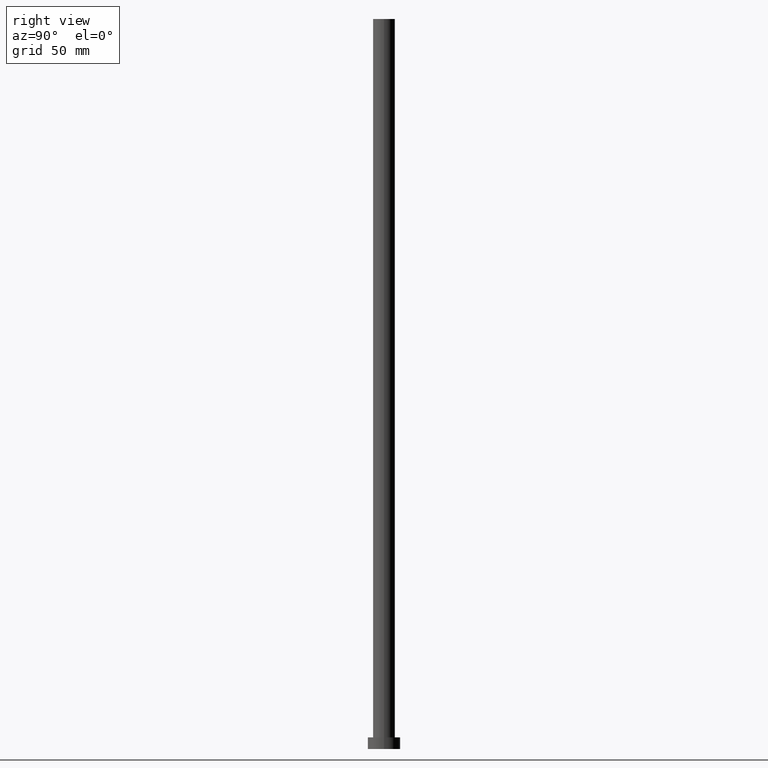
[diagram: clean part render]
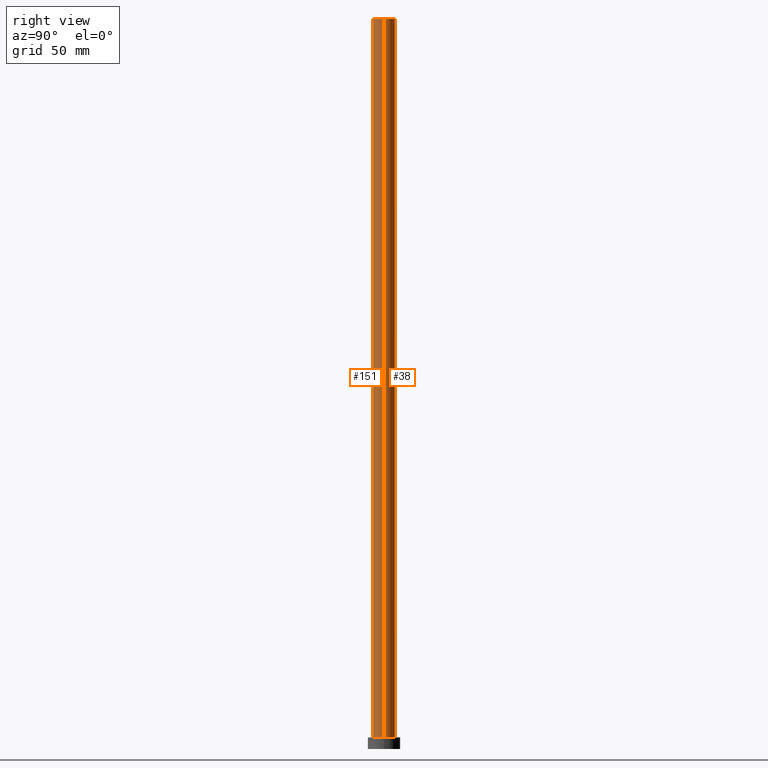
[diagram: same view with one multi-face feature highlighted, each face labeled with its STEP entity id]
A machine part, right view. The highlighted faces form ONE feature: a constant-radius fillet chain: 2 tangent blend faces with common blend radius 4.75 mm. The faces share edges in the B-rep.
Their STEP definitions:
[1] entity #151 (Cylinder):
#7 = DIRECTION ( 'NONE',  ( -0.000000000000000000, -0.000000000000000000, -1.000000000000000000 ) ) ;
#8 = CARTESIAN_POINT ( 'NONE',  ( 0.000000000000000000, 0.000000000000000000, 315.0000000000000000 ) ) ;
#9 = CARTESIAN_POINT ( 'NONE',  ( 4.750000000000000888, 5.817072295949928412E-16, 315.0000000000000000 ) ) ;
#15 = ORIENTED_EDGE ( 'NONE', *, *, #148, .T. ) ;
#17 = EDGE_CURVE ( 'NONE', #41, #115, #228, .T. ) ;
#24 = DIRECTION ( 'NONE',  ( 1.000000000000000000, 0.000000000000000000, 0.000000000000000000 ) ) ;
#29 = CYLINDRICAL_SURFACE ( 'NONE', #196, 4.750000000000000888 ) ;
#41 = VERTEX_POINT ( 'NONE', #254 ) ;
#46 = DIRECTION ( 'NONE',  ( -0.000000000000000000, -0.000000000000000000, -1.000000000000000000 ) ) ;
#58 = DIRECTION ( 'NONE',  ( 0.000000000000000000, 0.000000000000000000, 1.000000000000000000 ) ) ;
#66 = CARTESIAN_POINT ( 'NONE',  ( -4.750000000000000888, 0.000000000000000000, 315.0000000000000000 ) ) ;
#75 = EDGE_LOOP ( 'NONE', ( #82, #213, #15, #186 ) ) ;
#82 = ORIENTED_EDGE ( 'NONE', *, *, #250, .F. ) ;
#90 = DIRECTION ( 'NONE',  ( -1.000000000000000000, 0.000000000000000000, 0.000000000000000000 ) ) ;
#102 = EDGE_CURVE ( 'NONE', #203, #104, #235, .T. ) ;
#104 = VERTEX_POINT ( 'NONE', #175 ) ;
#111 = VECTOR ( 'NONE', #7, 1000.000000000000000 ) ;
#112 = DIRECTION ( 'NONE',  ( 0.000000000000000000, 0.000000000000000000, 1.000000000000000000 ) ) ;
#115 = VERTEX_POINT ( 'NONE', #238 ) ;
#136 = CARTESIAN_POINT ( 'NONE',  ( 0.000000000000000000, 0.000000000000000000, 315.0000000000000000 ) ) ;
#148 = EDGE_CURVE ( 'NONE', #203, #41, #191, .T. ) ;
#151 = ADVANCED_FACE ( 'NONE', ( #240 ), #29, .T. ) ;
#155 = DIRECTION ( 'NONE',  ( -0.000000000000000000, -0.000000000000000000, -1.000000000000000000 ) ) ;
#156 = CARTESIAN_POINT ( 'NONE',  ( -4.750000000000000888, 0.000000000000000000, 315.0000000000000000 ) ) ;
#175 = CARTESIAN_POINT ( 'NONE',  ( 4.750000000000000888, 5.817072295949928412E-16, 315.0000000000000000 ) ) ;
#186 = ORIENTED_EDGE ( 'NONE', *, *, #17, .T. ) ;
#191 = LINE ( 'NONE', #66, #241 ) ;
#196 = AXIS2_PLACEMENT_3D ( 'NONE', #8, #155, #90 ) ;
#203 = VERTEX_POINT ( 'NONE', #156 ) ;
#207 = AXIS2_PLACEMENT_3D ( 'NONE', #136, #112, #239 ) ;
#213 = ORIENTED_EDGE ( 'NONE', *, *, #102, .F. ) ;
#228 = CIRCLE ( 'NONE', #249, 4.750000000000000888 ) ;
#232 = CARTESIAN_POINT ( 'NONE',  ( 0.000000000000000000, 0.000000000000000000, 5.000000000000000000 ) ) ;
#235 = CIRCLE ( 'NONE', #207, 4.750000000000000888 ) ;
#238 = CARTESIAN_POINT ( 'NONE',  ( 4.750000000000000888, 5.817072295949928412E-16, 5.000000000000000000 ) ) ;
#239 = DIRECTION ( 'NONE',  ( 1.000000000000000000, 0.000000000000000000, 0.000000000000000000 ) ) ;
#240 = FACE_OUTER_BOUND ( 'NONE', #75, .T. ) ;
#241 = VECTOR ( 'NONE', #46, 1000.000000000000000 ) ;
#244 = LINE ( 'NONE', #9, #111 ) ;
#249 = AXIS2_PLACEMENT_3D ( 'NONE', #232, #58, #24 ) ;
#250 = EDGE_CURVE ( 'NONE', #104, #115, #244, .T. ) ;
#254 = CARTESIAN_POINT ( 'NONE',  ( -4.750000000000000888, 0.000000000000000000, 5.000000000000000000 ) ) ;
[2] entity #38 (Cylinder):
#7 = DIRECTION ( 'NONE',  ( -0.000000000000000000, -0.000000000000000000, -1.000000000000000000 ) ) ;
#9 = CARTESIAN_POINT ( 'NONE',  ( 4.750000000000000888, 5.817072295949928412E-16, 315.0000000000000000 ) ) ;
#19 = DIRECTION ( 'NONE',  ( 1.000000000000000000, 0.000000000000000000, 0.000000000000000000 ) ) ;
#21 = DIRECTION ( 'NONE',  ( 0.000000000000000000, 0.000000000000000000, 1.000000000000000000 ) ) ;
#37 = EDGE_LOOP ( 'NONE', ( #106, #126, #253, #180 ) ) ;
#38 = ADVANCED_FACE ( 'NONE', ( #185 ), #200, .T. ) ;
#39 = CIRCLE ( 'NONE', #120, 4.750000000000000888 ) ;
#41 = VERTEX_POINT ( 'NONE', #254 ) ;
#46 = DIRECTION ( 'NONE',  ( -0.000000000000000000, -0.000000000000000000, -1.000000000000000000 ) ) ;
#53 = EDGE_CURVE ( 'NONE', #115, #41, #39, .T. ) ;
#66 = CARTESIAN_POINT ( 'NONE',  ( -4.750000000000000888, 0.000000000000000000, 315.0000000000000000 ) ) ;
#84 = CIRCLE ( 'NONE', #117, 4.750000000000000888 ) ;
#104 = VERTEX_POINT ( 'NONE', #175 ) ;
#106 = ORIENTED_EDGE ( 'NONE', *, *, #188, .F. ) ;
#111 = VECTOR ( 'NONE', #7, 1000.000000000000000 ) ;
#115 = VERTEX_POINT ( 'NONE', #238 ) ;
#117 = AXIS2_PLACEMENT_3D ( 'NONE', #193, #211, #159 ) ;
#120 = AXIS2_PLACEMENT_3D ( 'NONE', #197, #21, #19 ) ;
#121 = CARTESIAN_POINT ( 'NONE',  ( 0.000000000000000000, 0.000000000000000000, 315.0000000000000000 ) ) ;
#126 = ORIENTED_EDGE ( 'NONE', *, *, #250, .T. ) ;
#148 = EDGE_CURVE ( 'NONE', #203, #41, #191, .T. ) ;
#156 = CARTESIAN_POINT ( 'NONE',  ( -4.750000000000000888, 0.000000000000000000, 315.0000000000000000 ) ) ;
#159 = DIRECTION ( 'NONE',  ( 1.000000000000000000, 0.000000000000000000, 0.000000000000000000 ) ) ;
#170 = DIRECTION ( 'NONE',  ( -0.000000000000000000, -0.000000000000000000, -1.000000000000000000 ) ) ;
#175 = CARTESIAN_POINT ( 'NONE',  ( 4.750000000000000888, 5.817072295949928412E-16, 315.0000000000000000 ) ) ;
#180 = ORIENTED_EDGE ( 'NONE', *, *, #148, .F. ) ;
#183 = DIRECTION ( 'NONE',  ( -1.000000000000000000, 0.000000000000000000, 0.000000000000000000 ) ) ;
#185 = FACE_OUTER_BOUND ( 'NONE', #37, .T. ) ;
#188 = EDGE_CURVE ( 'NONE', #104, #203, #84, .T. ) ;
#191 = LINE ( 'NONE', #66, #241 ) ;
#193 = CARTESIAN_POINT ( 'NONE',  ( 0.000000000000000000, 0.000000000000000000, 315.0000000000000000 ) ) ;
#197 = CARTESIAN_POINT ( 'NONE',  ( 0.000000000000000000, 0.000000000000000000, 5.000000000000000000 ) ) ;
#200 = CYLINDRICAL_SURFACE ( 'NONE', #212, 4.750000000000000888 ) ;
#203 = VERTEX_POINT ( 'NONE', #156 ) ;
#211 = DIRECTION ( 'NONE',  ( 0.000000000000000000, 0.000000000000000000, 1.000000000000000000 ) ) ;
#212 = AXIS2_PLACEMENT_3D ( 'NONE', #121, #170, #183 ) ;
#238 = CARTESIAN_POINT ( 'NONE',  ( 4.750000000000000888, 5.817072295949928412E-16, 5.000000000000000000 ) ) ;
#241 = VECTOR ( 'NONE', #46, 1000.000000000000000 ) ;
#244 = LINE ( 'NONE', #9, #111 ) ;
#250 = EDGE_CURVE ( 'NONE', #104, #115, #244, .T. ) ;
#253 = ORIENTED_EDGE ( 'NONE', *, *, #53, .T. ) ;
#254 = CARTESIAN_POINT ( 'NONE',  ( -4.750000000000000888, 0.000000000000000000, 5.000000000000000000 ) ) ;